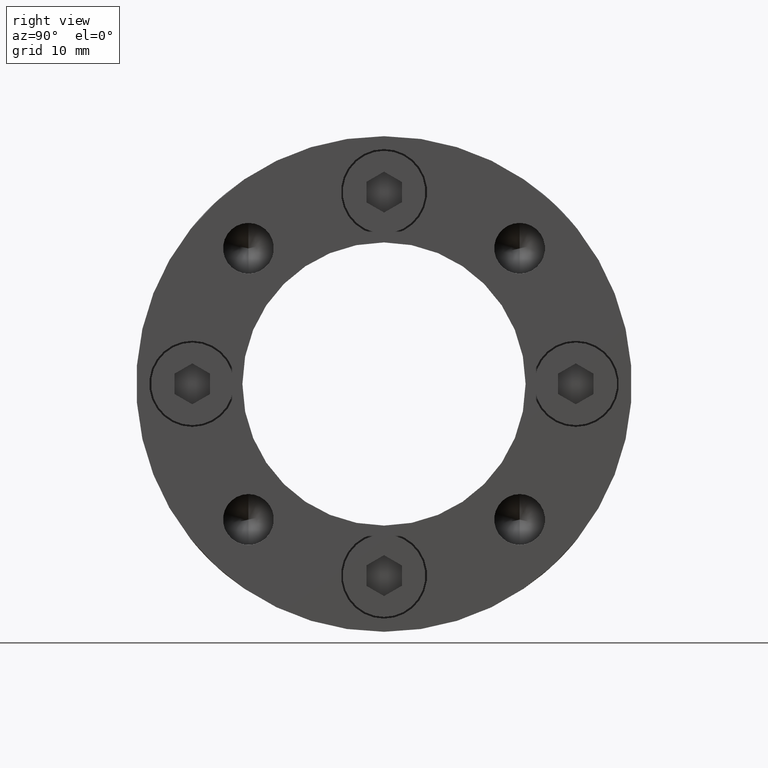
[diagram: clean part render]
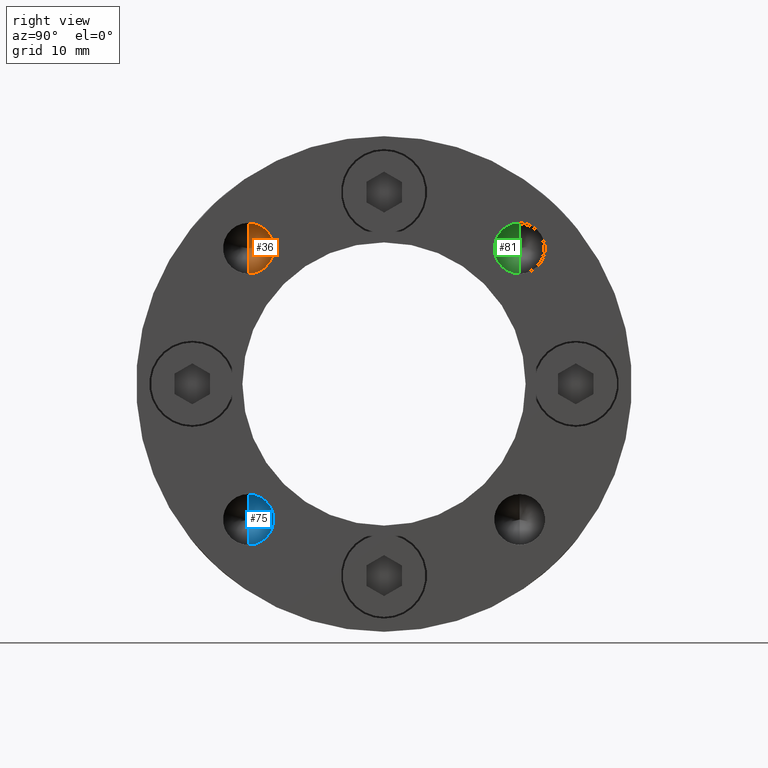
[diagram: same view with three faces highlighted in distinct colors, each labeled with its STEP entity id]
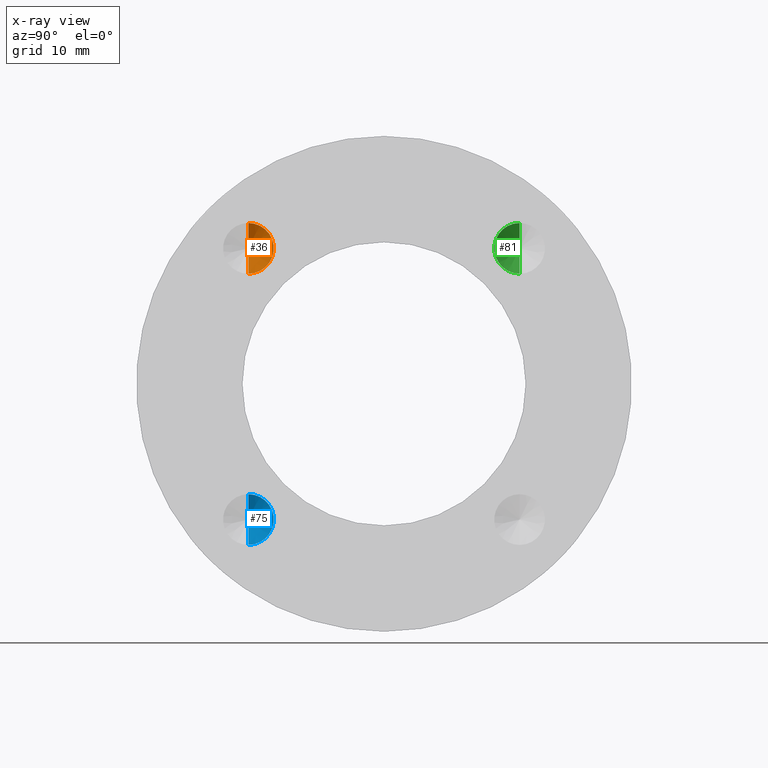
[diagram: x-ray of the same camera — body ghosted, the three highlighted faces saturated]
A machine part, right view with three faces highlighted in distinct colors.
The next image is the same camera in x-ray (body ghosted, the three faces saturated) — at least one of them is partly hidden behind the body in this view.
Their STEP definitions:

[orange] entity #36 — the highlighted conical surface has half-angle 59 deg.
#36 = ADVANCED_FACE ( 'NONE', ( #2316 ), #2327, .F. ) ;
#123 = CIRCLE ( 'NONE', #951, 2.149999999999999000 ) ;
#472 = AXIS2_PLACEMENT_3D ( 'NONE', #1298, #1301, #1306 ) ;
#951 = AXIS2_PLACEMENT_3D ( 'NONE', #3145, #3174, #3144 ) ;
#1166 = EDGE_CURVE ( 'NONE', #1787, #1852, #2811, .T. ) ;
#1167 = EDGE_CURVE ( 'NONE', #1787, #1861, #2813, .T. ) ;
#1186 = EDGE_CURVE ( 'NONE', #1852, #1861, #123, .T. ) ;
#1298 = CARTESIAN_POINT ( 'NONE',  ( 14.00000000114687300, -11.49048519428139800, 11.49048519428139800 ) ) ;
#1301 = DIRECTION ( 'NONE',  ( 1.000000000000000000, 0.0000000000000000000, 0.0000000000000000000 ) ) ;
#1306 = DIRECTION ( 'NONE',  ( 0.0000000000000000000, 0.0000000000000000000, -1.000000000000000000 ) ) ;
#1787 = VERTEX_POINT ( 'NONE', #3475 ) ;
#1852 = VERTEX_POINT ( 'NONE', #3443 ) ;
#1861 = VERTEX_POINT ( 'NONE', #3436 ) ;
#1941 = ORIENTED_EDGE ( 'NONE', *, *, #1167, .F. ) ;
#1943 = ORIENTED_EDGE ( 'NONE', *, *, #1166, .T. ) ;
#1950 = ORIENTED_EDGE ( 'NONE', *, *, #1186, .T. ) ;
#2180 = EDGE_LOOP ( 'NONE', ( #1941, #1943, #1950 ) ) ;
#2316 = FACE_OUTER_BOUND ( 'NONE', #2180, .T. ) ;
#2327 = CONICAL_SURFACE ( 'NONE', #472, 2.149999999142317100, 1.029744257458113900 ) ;
#2811 = LINE ( 'NONE', #2963, #2816 ) ;
#2813 = LINE ( 'NONE', #2896, #2818 ) ;
#2816 = VECTOR ( 'NONE', #2884, 1000.000000000000000 ) ;
#2818 = VECTOR ( 'NONE', #2979, 1000.000000000000000 ) ;
#2884 = DIRECTION ( 'NONE',  ( 0.5150380759545473100, 0.0000000000000000000, -0.8571673000745174700 ) ) ;
#2896 = CARTESIAN_POINT ( 'NONE',  ( 14.00000000114687300, -11.49048519428139800, 13.64048519342371600 ) ) ;
#2963 = CARTESIAN_POINT ( 'NONE',  ( 14.00000000114687300, -11.49048519428139800, 9.340485195139081000 ) ) ;
#2979 = DIRECTION ( 'NONE',  ( 0.5150380759545473100, 1.049727190370036600E-016, 0.8571673000745174700 ) ) ;
#3144 = DIRECTION ( 'NONE',  ( 0.0000000000000000000, 0.0000000000000000000, -1.000000000000000000 ) ) ;
#3145 = CARTESIAN_POINT ( 'NONE',  ( 13.99999999999999500, -11.49048519428139800, 11.49048519428139800 ) ) ;
#3174 = DIRECTION ( 'NONE',  ( 1.000000000000000000, 0.0000000000000000000, 0.0000000000000000000 ) ) ;
#3436 = CARTESIAN_POINT ( 'NONE',  ( 13.99999999999999500, -11.49048519428139800, 13.64048519151499100 ) ) ;
#3443 = CARTESIAN_POINT ( 'NONE',  ( 13.99999999999999500, -11.49048519428139800, 9.340485197047806700 ) ) ;
#3475 = CARTESIAN_POINT ( 'NONE',  ( 12.70814966733269100, -11.49048519428139800, 11.49048519431517000 ) ) ;

[blue] entity #75 — the highlighted conical surface has half-angle 59 deg.
#75 = ADVANCED_FACE ( 'NONE', ( #2577 ), #2588, .F. ) ;
#99 = ORIENTED_EDGE ( 'NONE', *, *, #1168, .T. ) ;
#103 = ORIENTED_EDGE ( 'NONE', *, *, #1187, .T. ) ;
#106 = ORIENTED_EDGE ( 'NONE', *, *, #1178, .F. ) ;
#124 = CIRCLE ( 'NONE', #952, 2.149999999999999000 ) ;
#842 = AXIS2_PLACEMENT_3D ( 'NONE', #1678, #1680, #1685 ) ;
#952 = AXIS2_PLACEMENT_3D ( 'NONE', #3143, #3141, #3138 ) ;
#1168 = EDGE_CURVE ( 'NONE', #2056, #1829, #2817, .T. ) ;
#1178 = EDGE_CURVE ( 'NONE', #2056, #1857, #2832, .T. ) ;
#1187 = EDGE_CURVE ( 'NONE', #1829, #1857, #124, .T. ) ;
#1678 = CARTESIAN_POINT ( 'NONE',  ( 14.00000000114687300, -11.49048519428139800, -11.49048519428139800 ) ) ;
#1680 = DIRECTION ( 'NONE',  ( 1.000000000000000000, 0.0000000000000000000, -0.0000000000000000000 ) ) ;
#1685 = DIRECTION ( 'NONE',  ( 0.0000000000000000000, 0.0000000000000000000, -1.000000000000000000 ) ) ;
#1829 = VERTEX_POINT ( 'NONE', #3459 ) ;
#1857 = VERTEX_POINT ( 'NONE', #3446 ) ;
#2056 = VERTEX_POINT ( 'NONE', #3355 ) ;
#2186 = EDGE_LOOP ( 'NONE', ( #106, #99, #103 ) ) ;
#2577 = FACE_OUTER_BOUND ( 'NONE', #2186, .T. ) ;
#2588 = CONICAL_SURFACE ( 'NONE', #842, 2.149999999142317100, 1.029744257458113900 ) ;
#2817 = LINE ( 'NONE', #2970, #2820 ) ;
#2820 = VECTOR ( 'NONE', #2961, 1000.000000000000000 ) ;
#2832 = LINE ( 'NONE', #2907, #2836 ) ;
#2836 = VECTOR ( 'NONE', #2893, 1000.000000000000000 ) ;
#2893 = DIRECTION ( 'NONE',  ( 0.5150380759545473100, 1.049727190370036600E-016, 0.8571673000745174700 ) ) ;
#2907 = CARTESIAN_POINT ( 'NONE',  ( 14.00000000114687300, -11.49048519428139800, -9.340485195139081000 ) ) ;
#2961 = DIRECTION ( 'NONE',  ( 0.5150380759545473100, 0.0000000000000000000, -0.8571673000745174700 ) ) ;
#2970 = CARTESIAN_POINT ( 'NONE',  ( 14.00000000114687300, -11.49048519428139800, -13.64048519342371600 ) ) ;
#3138 = DIRECTION ( 'NONE',  ( 0.0000000000000000000, 0.0000000000000000000, -1.000000000000000000 ) ) ;
#3141 = DIRECTION ( 'NONE',  ( 1.000000000000000000, 0.0000000000000000000, 0.0000000000000000000 ) ) ;
#3143 = CARTESIAN_POINT ( 'NONE',  ( 13.99999999999999500, -11.49048519428139800, -11.49048519428139800 ) ) ;
#3355 = CARTESIAN_POINT ( 'NONE',  ( 12.70814966733269100, -11.49048519431517000, -11.49048519428139800 ) ) ;
#3446 = CARTESIAN_POINT ( 'NONE',  ( 13.99999999999999500, -11.49048519428139800, -9.340485197047806700 ) ) ;
#3459 = CARTESIAN_POINT ( 'NONE',  ( 13.99999999999999500, -11.49048519428139800, -13.64048519151499100 ) ) ;

[green] entity #81 — the highlighted conical surface has half-angle 59 deg.
#81 = ADVANCED_FACE ( 'NONE', ( #2585 ), #2600, .F. ) ;
#87 = ORIENTED_EDGE ( 'NONE', *, *, #1153, .T. ) ;
#93 = ORIENTED_EDGE ( 'NONE', *, *, #1179, .F. ) ;
#94 = ORIENTED_EDGE ( 'NONE', *, *, #1183, .T. ) ;
#111 = LINE ( 'NONE', #2888, #112 ) ;
#112 = VECTOR ( 'NONE', #2886, 1000.000000000000100 ) ;
#116 = LINE ( 'NONE', #2875, #121 ) ;
#121 = VECTOR ( 'NONE', #2880, 1000.000000000000100 ) ;
#862 = AXIS2_PLACEMENT_3D ( 'NONE', #1656, #1660, #1662 ) ;
#937 = AXIS2_PLACEMENT_3D ( 'NONE', #2900, #2898, #2897 ) ;
#1153 = EDGE_CURVE ( 'NONE', #1851, #1786, #2793, .T. ) ;
#1179 = EDGE_CURVE ( 'NONE', #1793, #1786, #111, .T. ) ;
#1183 = EDGE_CURVE ( 'NONE', #1793, #1851, #116, .T. ) ;
#1656 = CARTESIAN_POINT ( 'NONE',  ( 14.00000000114687300, 11.49048519428139900, 11.49048519428139400 ) ) ;
#1660 = DIRECTION ( 'NONE',  ( 1.000000000000000000, -0.0000000000000000000, 0.0000000000000000000 ) ) ;
#1662 = DIRECTION ( 'NONE',  ( 0.0000000000000000000, 0.0000000000000000000, -1.000000000000000000 ) ) ;
#1786 = VERTEX_POINT ( 'NONE', #3480 ) ;
#1793 = VERTEX_POINT ( 'NONE', #3474 ) ;
#1851 = VERTEX_POINT ( 'NONE', #3444 ) ;
#2184 = EDGE_LOOP ( 'NONE', ( #93, #94, #87 ) ) ;
#2585 = FACE_OUTER_BOUND ( 'NONE', #2184, .T. ) ;
#2600 = CONICAL_SURFACE ( 'NONE', #862, 2.149999999142318900, 1.029744257458114600 ) ;
#2793 = CIRCLE ( 'NONE', #937, 2.149999999999999000 ) ;
#2875 = CARTESIAN_POINT ( 'NONE',  ( 14.00000000114687300, 11.49048519428139900, 13.64048519342371400 ) ) ;
#2880 = DIRECTION ( 'NONE',  ( 0.5150380759545467600, 1.049727190370037100E-016, 0.8571673000745178000 ) ) ;
#2886 = DIRECTION ( 'NONE',  ( 0.5150380759545467600, 0.0000000000000000000, -0.8571673000745178000 ) ) ;
#2888 = CARTESIAN_POINT ( 'NONE',  ( 14.00000000114687300, 11.49048519428139900, 9.340485195139075700 ) ) ;
#2897 = DIRECTION ( 'NONE',  ( 0.0000000000000000000, 0.0000000000000000000, -1.000000000000000000 ) ) ;
#2898 = DIRECTION ( 'NONE',  ( 1.000000000000000000, 0.0000000000000000000, 0.0000000000000000000 ) ) ;
#2900 = CARTESIAN_POINT ( 'NONE',  ( 13.99999999999999500, 11.49048519428139900, 11.49048519428139400 ) ) ;
#3444 = CARTESIAN_POINT ( 'NONE',  ( 13.99999999999999500, 11.49048519428139900, 13.64048519151498900 ) ) ;
#3474 = CARTESIAN_POINT ( 'NONE',  ( 12.70814966733269100, 11.49048519431517000, 11.49048519428139400 ) ) ;
#3480 = CARTESIAN_POINT ( 'NONE',  ( 13.99999999999999500, 11.49048519428139900, 9.340485197047801300 ) ) ;